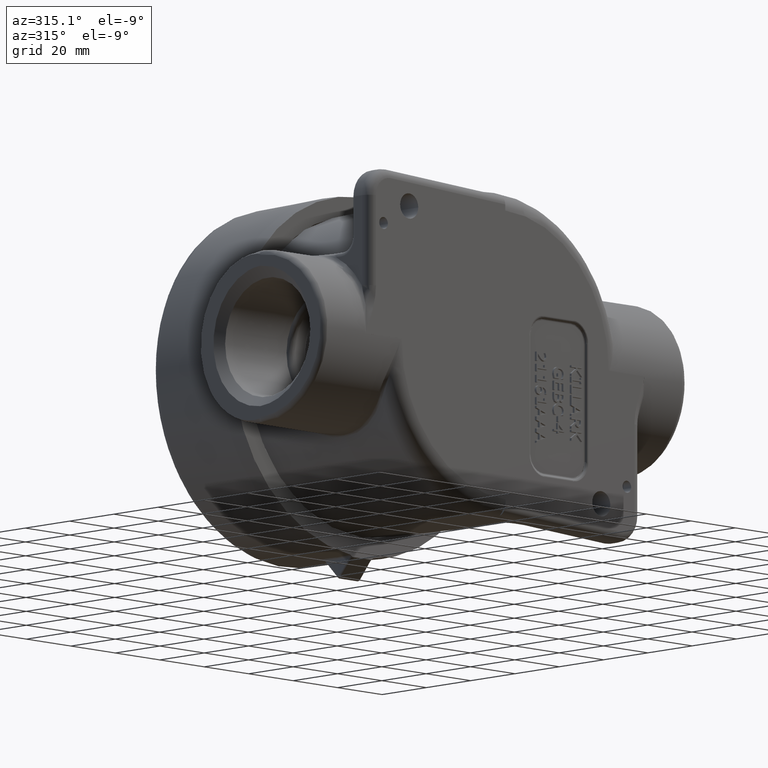
[diagram: clean part render]
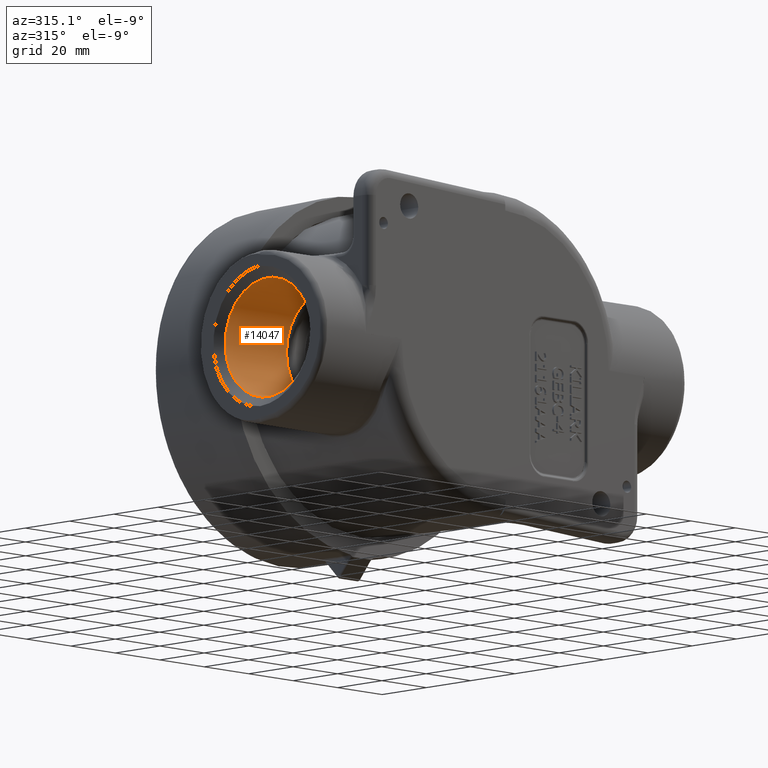
[diagram: same view with one face highlighted and labeled with its STEP entity id]
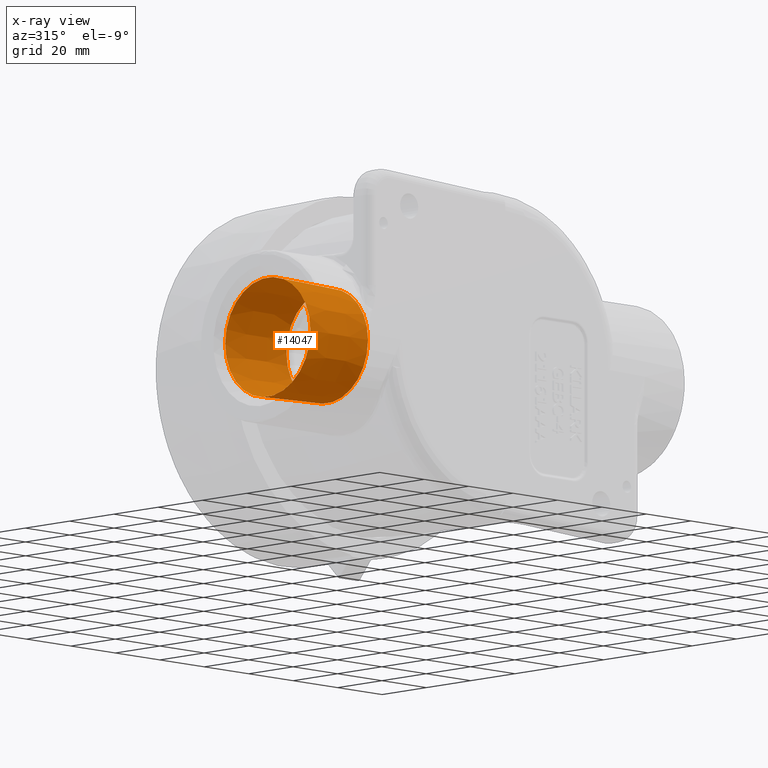
[diagram: x-ray of the same camera — body ghosted, the highlighted face saturated]
A machine part, auxiliary view. The second image highlights one B-rep face of the part: STEP entity #14047.
The next image is the same camera in x-ray: the body ghosted, the highlighted face saturated — about 0% of this face is hidden behind the body in this view.
In plain terms, the highlighted conical surface has half-angle 1.793 deg.
Its self-contained STEP definition (entity closure, byte-faithful):
#168=CONICAL_SURFACE('',#15002,0.7415,0.0312990733816223);
#270=LINE('',#24693,#1529);
#1529=VECTOR('',#16195,0.7415);
#3316=FACE_OUTER_BOUND('',#4164,.T.);
#4164=EDGE_LOOP('',(#9845,#9846,#9847,#9848,#9849,#9850));
#5578=CIRCLE('',#14987,0.725);
#5579=CIRCLE('',#14988,0.725);
#5584=CIRCLE('',#15000,0.758);
#5585=CIRCLE('',#15001,0.758);
#5963=VERTEX_POINT('',#24257);
#5964=VERTEX_POINT('',#24259);
#6092=VERTEX_POINT('',#24687);
#6093=VERTEX_POINT('',#24689);
#7412=EDGE_CURVE('',#5964,#5963,#5578,.T.);
#7413=EDGE_CURVE('',#5963,#5964,#5579,.T.);
#7544=EDGE_CURVE('',#6092,#6093,#5584,.T.);
#7545=EDGE_CURVE('',#6093,#6092,#5585,.T.);
#7546=EDGE_CURVE('',#6092,#5963,#270,.T.);
#9845=ORIENTED_EDGE('',*,*,#7545,.F.);
#9846=ORIENTED_EDGE('',*,*,#7544,.F.);
#9847=ORIENTED_EDGE('',*,*,#7546,.T.);
#9848=ORIENTED_EDGE('',*,*,#7413,.T.);
#9849=ORIENTED_EDGE('',*,*,#7412,.T.);
#9850=ORIENTED_EDGE('',*,*,#7546,.F.);
#14047=ADVANCED_FACE('',(#3316),#168,.F.);
#14987=AXIS2_PLACEMENT_3D('',#24260,#16095,#16096);
#14988=AXIS2_PLACEMENT_3D('',#24261,#16097,#16098);
#15000=AXIS2_PLACEMENT_3D('',#24690,#16189,#16190);
#15001=AXIS2_PLACEMENT_3D('',#24691,#16191,#16192);
#15002=AXIS2_PLACEMENT_3D('',#24692,#16193,#16194);
#16095=DIRECTION('center_axis',(1.,0.,1.22464679914735E-16));
#16096=DIRECTION('ref_axis',(0.,1.,0.));
#16097=DIRECTION('center_axis',(1.,0.,1.22464679914735E-16));
#16098=DIRECTION('ref_axis',(0.,1.,0.));
#16189=DIRECTION('center_axis',(1.,0.,1.22464679914735E-16));
#16190=DIRECTION('ref_axis',(0.,1.,0.));
#16191=DIRECTION('center_axis',(1.,0.,1.22464679914735E-16));
#16192=DIRECTION('ref_axis',(0.,1.,0.));
#16193=DIRECTION('center_axis',(-1.,0.,-1.22464679914735E-16));
#16194=DIRECTION('ref_axis',(0.,1.,0.));
#16195=DIRECTION('',(0.999510223988039,0.0312939633696446,1.26237104859528E-16));
#24257=CARTESIAN_POINT('',(-2.062,-3.1306,-2.60811281619439E-16));
#24259=CARTESIAN_POINT('',(-2.062,-1.6806,-2.52522169984184E-16));
#24260=CARTESIAN_POINT('Origin',(-2.062,-2.4056,-2.52522169984184E-16));
#24261=CARTESIAN_POINT('Origin',(-2.062,-2.4056,-2.52522169984184E-16));
#24687=CARTESIAN_POINT('',(-3.116,-3.1636,-4.74428169989685E-16));
#24689=CARTESIAN_POINT('',(-3.116,-1.6476,-3.81599942614315E-16));
#24690=CARTESIAN_POINT('Origin',(-3.116,-2.4056,-3.81599942614315E-16));
#24691=CARTESIAN_POINT('Origin',(-3.116,-2.4056,-3.81599942614315E-16));
#24692=CARTESIAN_POINT('Origin',(-2.589,-2.4056,-3.1706105629925E-16));
#24693=CARTESIAN_POINT('',(-2.589,-3.1471,-4.07868616456026E-16));